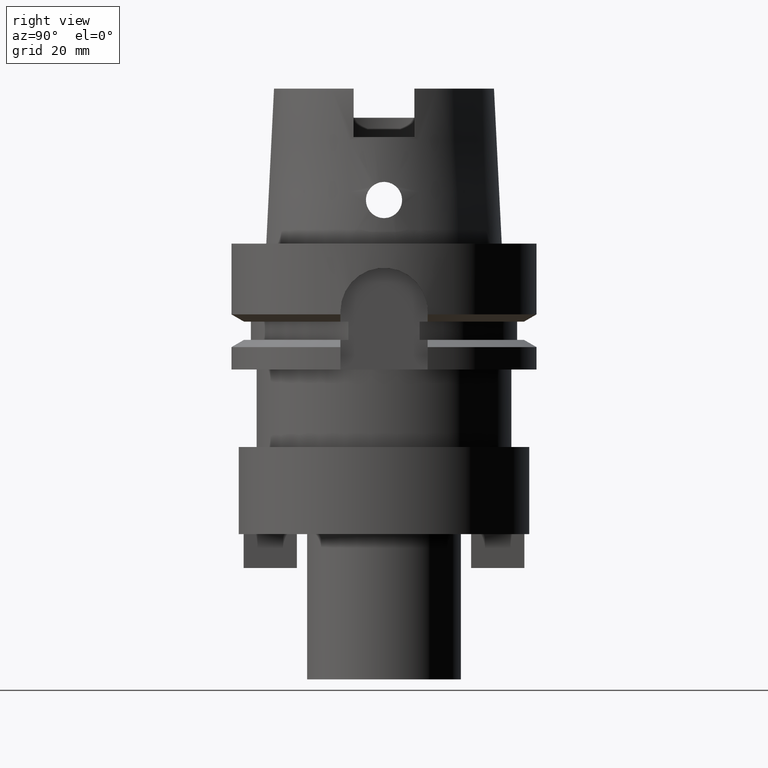
[diagram: clean part render]
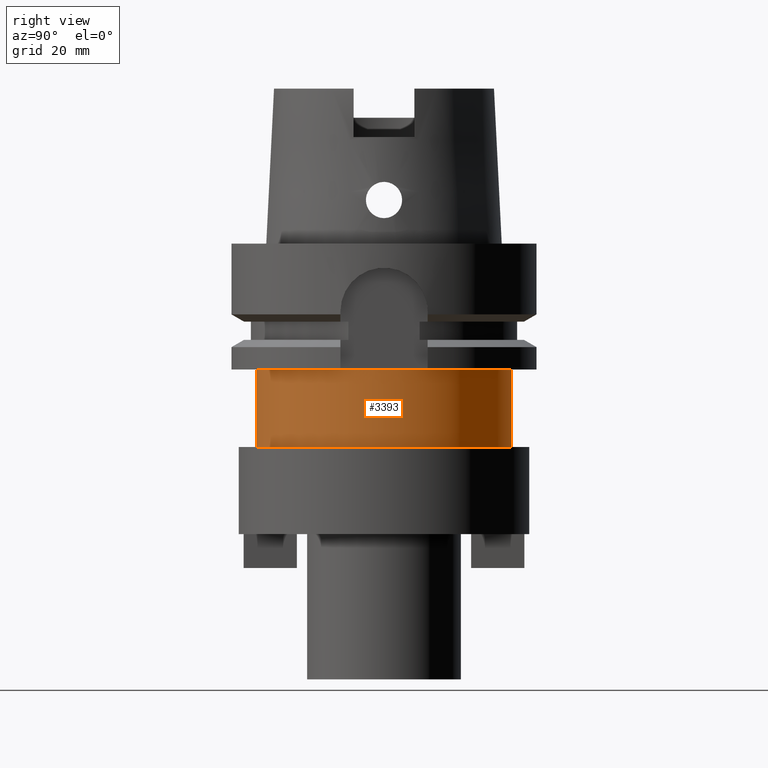
[diagram: same view with one face highlighted and labeled with its STEP entity id]
A machine part, right view. The second image highlights one B-rep face of the part: STEP entity #3393.
In plain terms, the highlighted cylindrical surface (partial cylindrical patch) has radius 26.3 mm, axis along (0, 0, 1).
Its self-contained STEP definition (entity closure, byte-faithful):
#772=CARTESIAN_POINT('',(0.E0,0.E0,-2.6E1));
#773=DIRECTION('',(0.E0,0.E0,-1.E0));
#774=DIRECTION('',(0.E0,1.E0,0.E0));
#775=AXIS2_PLACEMENT_3D('',#772,#773,#774);
#1304=DIRECTION('',(0.E0,0.E0,-1.E0));
#1305=VECTOR('',#1304,1.6E1);
#1306=CARTESIAN_POINT('',(0.E0,-2.63E1,-2.6E1));
#1307=LINE('',#1306,#1305);
#1311=DIRECTION('',(0.E0,0.E0,-1.E0));
#1312=VECTOR('',#1311,1.6E1);
#1313=CARTESIAN_POINT('',(0.E0,2.63E1,-2.6E1));
#1314=LINE('',#1313,#1312);
#1334=CARTESIAN_POINT('',(0.E0,0.E0,-4.2E1));
#1335=DIRECTION('',(0.E0,0.E0,1.E0));
#1336=DIRECTION('',(0.E0,-1.E0,0.E0));
#1337=AXIS2_PLACEMENT_3D('',#1334,#1335,#1336);
#2330=CARTESIAN_POINT('',(0.E0,-2.63E1,-4.2E1));
#2331=CARTESIAN_POINT('',(0.E0,2.63E1,-4.2E1));
#2332=VERTEX_POINT('',#2330);
#2333=VERTEX_POINT('',#2331);
#2334=CARTESIAN_POINT('',(0.E0,2.63E1,-2.6E1));
#2335=VERTEX_POINT('',#2334);
#2336=CARTESIAN_POINT('',(0.E0,-2.63E1,-2.6E1));
#2337=VERTEX_POINT('',#2336);
#3381=CARTESIAN_POINT('',(0.E0,0.E0,-9.61E1));
#3382=DIRECTION('',(0.E0,0.E0,1.E0));
#3383=DIRECTION('',(0.E0,1.E0,0.E0));
#3384=AXIS2_PLACEMENT_3D('',#3381,#3382,#3383);
#3385=CYLINDRICAL_SURFACE('',#3384,2.63E1);
#3386=ORIENTED_EDGE('',*,*,#3371,.T.);
#3388=ORIENTED_EDGE('',*,*,#3387,.F.);
#3389=ORIENTED_EDGE('',*,*,#3374,.F.);
#3390=ORIENTED_EDGE('',*,*,#2984,.F.);
#3391=EDGE_LOOP('',(#3386,#3388,#3389,#3390));
#3392=FACE_OUTER_BOUND('',#3391,.F.);
#776=CIRCLE('',#775,2.63E1);
#1338=CIRCLE('',#1337,2.63E1);
#2984=EDGE_CURVE('',#2335,#2337,#776,.T.);
#3371=EDGE_CURVE('',#2335,#2333,#1314,.T.);
#3374=EDGE_CURVE('',#2337,#2332,#1307,.T.);
#3387=EDGE_CURVE('',#2332,#2333,#1338,.T.);
#3393=ADVANCED_FACE('',(#3392),#3385,.T.);